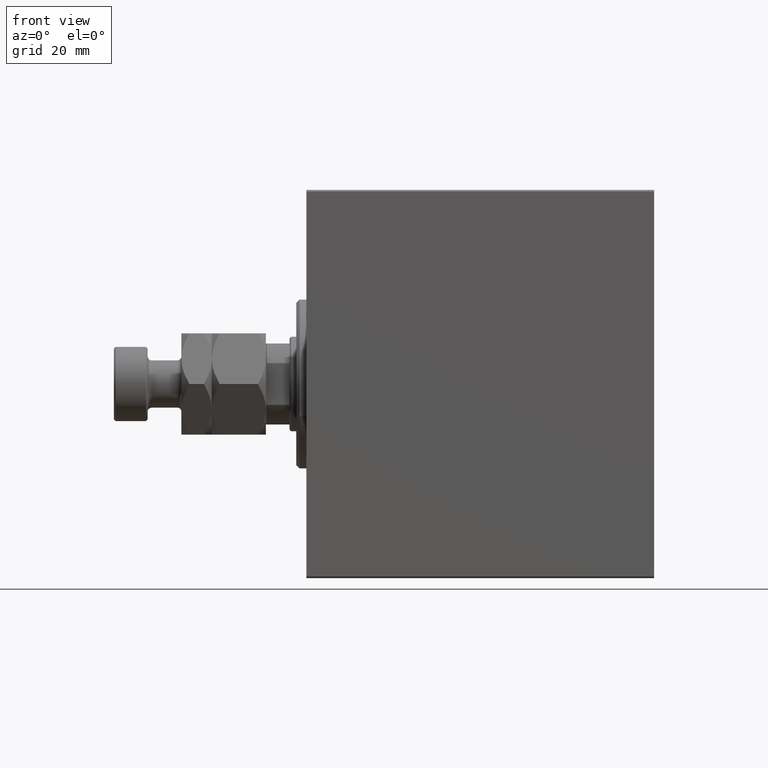
[diagram: clean part render]
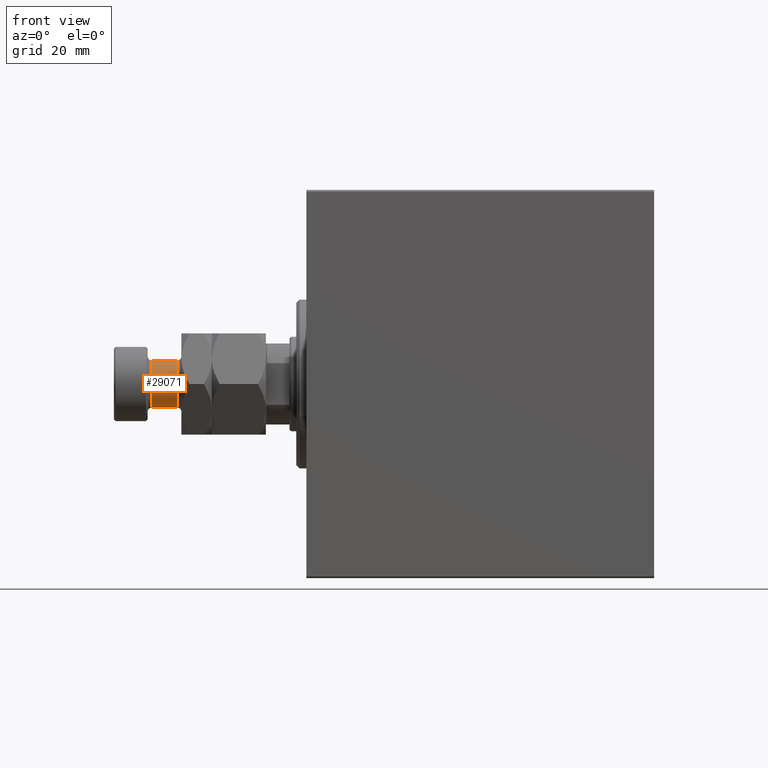
[diagram: same view with one face highlighted and labeled with its STEP entity id]
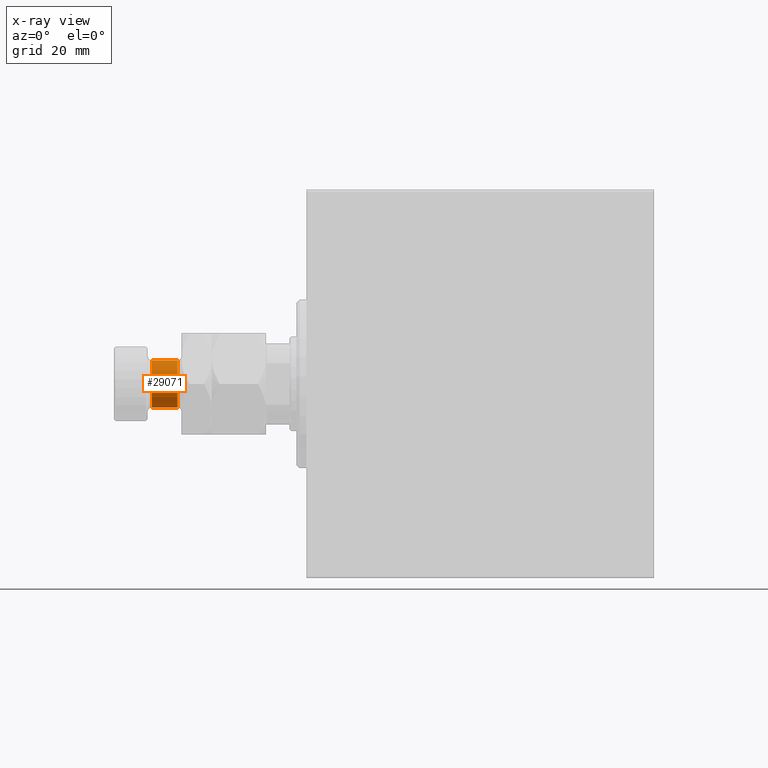
[diagram: x-ray of the same camera — body ghosted, the highlighted face saturated]
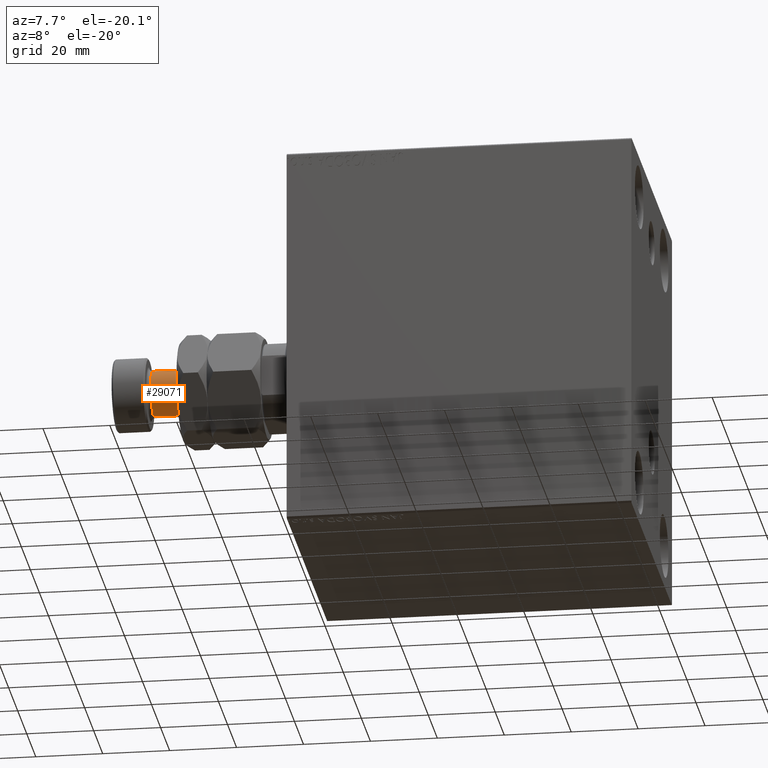
[diagram: same view with one face highlighted and labeled with its STEP entity id]
A machine part, front view. The second image highlights one B-rep face of the part: STEP entity #29071.
The next image is the same camera in x-ray: the body ghosted, the highlighted face saturated — about 0% of this face is hidden behind the body in this view.
A second angle (auxiliary view) of the same face is appended — the face is thin or edge-on in the first view.
In plain terms, the highlighted cylindrical surface (edge-blend (fillet) strip) has radius 7 mm, axis along (1, -0, -0).
Its self-contained STEP definition (entity closure, byte-faithful):
#919 = EDGE_CURVE ( 'NONE', #40236, #26797, #20234, .T. ) ;
#1019 = ORIENTED_EDGE ( 'NONE', *, *, #1572, .T. ) ;
#1572 = EDGE_CURVE ( 'NONE', #2019, #39206, #21701, .T. ) ;
#2019 = VERTEX_POINT ( 'NONE', #44492 ) ;
#4200 = CYLINDRICAL_SURFACE ( 'NONE', #7105, 7.000000000000000000 ) ;
#4428 = DIRECTION ( 'NONE',  ( -1.000000000000000000, 0.000000000000000000, 0.000000000000000000 ) ) ;
#5925 = DIRECTION ( 'NONE',  ( 0.000000000000000000, -0.000000000000000000, 1.000000000000000000 ) ) ;
#7105 = AXIS2_PLACEMENT_3D ( 'NONE', #26041, #18225, #4428 ) ;
#10840 = CARTESIAN_POINT ( 'NONE',  ( 7.000000000000000000, 8.572527594031473190E-16, 35.00000000000000000 ) ) ;
#14904 = CARTESIAN_POINT ( 'NONE',  ( 0.000000000000000000, 0.000000000000000000, 26.20000000000000284 ) ) ;
#18225 = DIRECTION ( 'NONE',  ( -0.000000000000000000, -0.000000000000000000, -1.000000000000000000 ) ) ;
#18406 = VECTOR ( 'NONE', #28379, 1000.000000000000000 ) ;
#18454 = FACE_OUTER_BOUND ( 'NONE', #31320, .T. ) ;
#18888 = EDGE_CURVE ( 'NONE', #26797, #2019, #40064, .T. ) ;
#19869 = CARTESIAN_POINT ( 'NONE',  ( -7.000000000000000000, 0.000000000000000000, 33.80000000000000426 ) ) ;
#20234 = CIRCLE ( 'NONE', #31274, 7.000000000000000000 ) ;
#21251 = DIRECTION ( 'NONE',  ( -0.000000000000000000, -0.000000000000000000, -1.000000000000000000 ) ) ;
#21312 = ORIENTED_EDGE ( 'NONE', *, *, #919, .T. ) ;
#21701 = CIRCLE ( 'NONE', #27593, 7.000000000000000000 ) ;
#24043 = CARTESIAN_POINT ( 'NONE',  ( 0.000000000000000000, 0.000000000000000000, 33.80000000000000426 ) ) ;
#26041 = CARTESIAN_POINT ( 'NONE',  ( 0.000000000000000000, 0.000000000000000000, 35.00000000000000000 ) ) ;
#26797 = VERTEX_POINT ( 'NONE', #19869 ) ;
#27593 = AXIS2_PLACEMENT_3D ( 'NONE', #14904, #5925, #36973 ) ;
#28379 = DIRECTION ( 'NONE',  ( -0.000000000000000000, -0.000000000000000000, -1.000000000000000000 ) ) ;
#29071 = ADVANCED_FACE ( 'NONE', ( #18454 ), #4200, .T. ) ;
#31274 = AXIS2_PLACEMENT_3D ( 'NONE', #24043, #21251, #45203 ) ;
#31307 = DIRECTION ( 'NONE',  ( -0.000000000000000000, -0.000000000000000000, -1.000000000000000000 ) ) ;
#31320 = EDGE_LOOP ( 'NONE', ( #42273, #21312, #34905, #1019 ) ) ;
#34765 = LINE ( 'NONE', #10840, #44128 ) ;
#34905 = ORIENTED_EDGE ( 'NONE', *, *, #18888, .T. ) ;
#36973 = DIRECTION ( 'NONE',  ( 1.000000000000000000, 0.000000000000000000, 0.000000000000000000 ) ) ;
#37829 = CARTESIAN_POINT ( 'NONE',  ( 7.000000000000000000, 8.572527594031473190E-16, 26.20000000000000284 ) ) ;
#38428 = EDGE_CURVE ( 'NONE', #40236, #39206, #34765, .T. ) ;
#39206 = VERTEX_POINT ( 'NONE', #37829 ) ;
#40064 = LINE ( 'NONE', #43750, #18406 ) ;
#40236 = VERTEX_POINT ( 'NONE', #44750 ) ;
#42273 = ORIENTED_EDGE ( 'NONE', *, *, #38428, .F. ) ;
#43750 = CARTESIAN_POINT ( 'NONE',  ( -7.000000000000000000, 0.000000000000000000, 35.00000000000000000 ) ) ;
#44128 = VECTOR ( 'NONE', #31307, 1000.000000000000000 ) ;
#44492 = CARTESIAN_POINT ( 'NONE',  ( -7.000000000000000000, 0.000000000000000000, 26.20000000000000284 ) ) ;
#44750 = CARTESIAN_POINT ( 'NONE',  ( 7.000000000000000000, 8.572527594031473190E-16, 33.80000000000000426 ) ) ;
#45203 = DIRECTION ( 'NONE',  ( 1.000000000000000000, 0.000000000000000000, 0.000000000000000000 ) ) ;